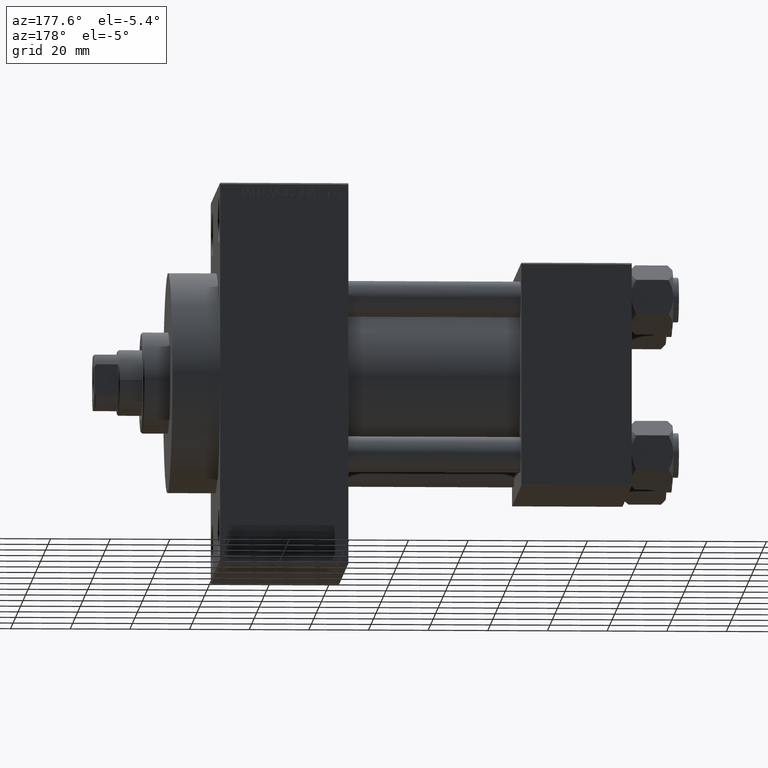
[diagram: clean part render]
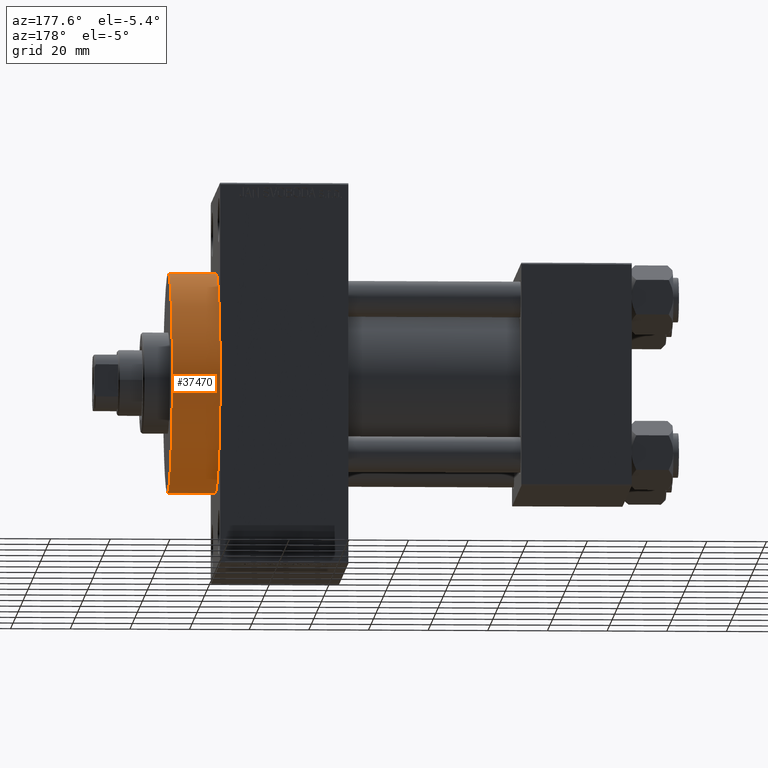
[diagram: same view with one face highlighted and labeled with its STEP entity id]
A machine part, auxiliary view. The second image highlights one B-rep face of the part: STEP entity #37470.
In plain terms, the highlighted cylindrical surface (partial cylindrical patch) has radius 37 mm, axis along (-1, -0, -0).
Its self-contained STEP definition (entity closure, byte-faithful):
#806 = VERTEX_POINT ( 'NONE', #30007 ) ;
#1890 = VECTOR ( 'NONE', #35099, 1000.000000000000000 ) ;
#3381 = CIRCLE ( 'NONE', #8736, 37.00000000000000000 ) ;
#5618 = DIRECTION ( 'NONE',  ( -1.000000000000000000, -0.000000000000000000, -0.000000000000000000 ) ) ;
#5686 = VERTEX_POINT ( 'NONE', #40981 ) ;
#6080 = LINE ( 'NONE', #38326, #41628 ) ;
#8736 = AXIS2_PLACEMENT_3D ( 'NONE', #46322, #27944, #21241 ) ;
#11444 = EDGE_CURVE ( 'NONE', #43407, #5686, #19993, .T. ) ;
#13151 = AXIS2_PLACEMENT_3D ( 'NONE', #14409, #46879, #21568 ) ;
#13497 = AXIS2_PLACEMENT_3D ( 'NONE', #33329, #29041, #22601 ) ;
#14409 = CARTESIAN_POINT ( 'NONE',  ( 154.0000000000000284, 0.000000000000000000, 0.000000000000000000 ) ) ;
#16419 = ORIENTED_EDGE ( 'NONE', *, *, #11444, .F. ) ;
#16698 = EDGE_CURVE ( 'NONE', #43407, #36792, #20547, .T. ) ;
#19838 = CARTESIAN_POINT ( 'NONE',  ( 154.0000000000000284, 4.531193156845206793E-15, -37.00000000000000000 ) ) ;
#19993 = CIRCLE ( 'NONE', #13151, 37.00000000000000000 ) ;
#20547 = LINE ( 'NONE', #19838, #1890 ) ;
#21241 = DIRECTION ( 'NONE',  ( 0.000000000000000000, 0.000000000000000000, -1.000000000000000000 ) ) ;
#21568 = DIRECTION ( 'NONE',  ( 0.000000000000000000, 0.000000000000000000, -1.000000000000000000 ) ) ;
#21653 = ORIENTED_EDGE ( 'NONE', *, *, #16698, .T. ) ;
#22601 = DIRECTION ( 'NONE',  ( 0.000000000000000000, 0.000000000000000000, 1.000000000000000000 ) ) ;
#25353 = CARTESIAN_POINT ( 'NONE',  ( 154.0000000000000284, 4.531193156845206793E-15, -37.00000000000000000 ) ) ;
#26395 = EDGE_CURVE ( 'NONE', #36792, #806, #3381, .T. ) ;
#27944 = DIRECTION ( 'NONE',  ( 1.000000000000000000, 0.000000000000000000, 0.000000000000000000 ) ) ;
#29041 = DIRECTION ( 'NONE',  ( -1.000000000000000000, -0.000000000000000000, -0.000000000000000000 ) ) ;
#30007 = CARTESIAN_POINT ( 'NONE',  ( 138.0000000000000000, 0.000000000000000000, 37.00000000000000000 ) ) ;
#30153 = CARTESIAN_POINT ( 'NONE',  ( 138.0000000000000000, 4.531193156845206793E-15, -37.00000000000000000 ) ) ;
#30874 = EDGE_CURVE ( 'NONE', #5686, #806, #6080, .T. ) ;
#31217 = EDGE_LOOP ( 'NONE', ( #16419, #21653, #38172, #41069 ) ) ;
#33329 = CARTESIAN_POINT ( 'NONE',  ( 154.0000000000000284, 0.000000000000000000, 0.000000000000000000 ) ) ;
#35099 = DIRECTION ( 'NONE',  ( -1.000000000000000000, -0.000000000000000000, -0.000000000000000000 ) ) ;
#36792 = VERTEX_POINT ( 'NONE', #30153 ) ;
#37470 = ADVANCED_FACE ( 'NONE', ( #40969 ), #40490, .T. ) ;
#38172 = ORIENTED_EDGE ( 'NONE', *, *, #26395, .T. ) ;
#38326 = CARTESIAN_POINT ( 'NONE',  ( 154.0000000000000284, 0.000000000000000000, 37.00000000000000000 ) ) ;
#40490 = CYLINDRICAL_SURFACE ( 'NONE', #13497, 37.00000000000000000 ) ;
#40969 = FACE_OUTER_BOUND ( 'NONE', #31217, .T. ) ;
#40981 = CARTESIAN_POINT ( 'NONE',  ( 154.0000000000000284, 0.000000000000000000, 37.00000000000000000 ) ) ;
#41069 = ORIENTED_EDGE ( 'NONE', *, *, #30874, .F. ) ;
#41628 = VECTOR ( 'NONE', #5618, 1000.000000000000000 ) ;
#43407 = VERTEX_POINT ( 'NONE', #25353 ) ;
#46322 = CARTESIAN_POINT ( 'NONE',  ( 138.0000000000000000, 0.000000000000000000, 0.000000000000000000 ) ) ;
#46879 = DIRECTION ( 'NONE',  ( 1.000000000000000000, 0.000000000000000000, 0.000000000000000000 ) ) ;